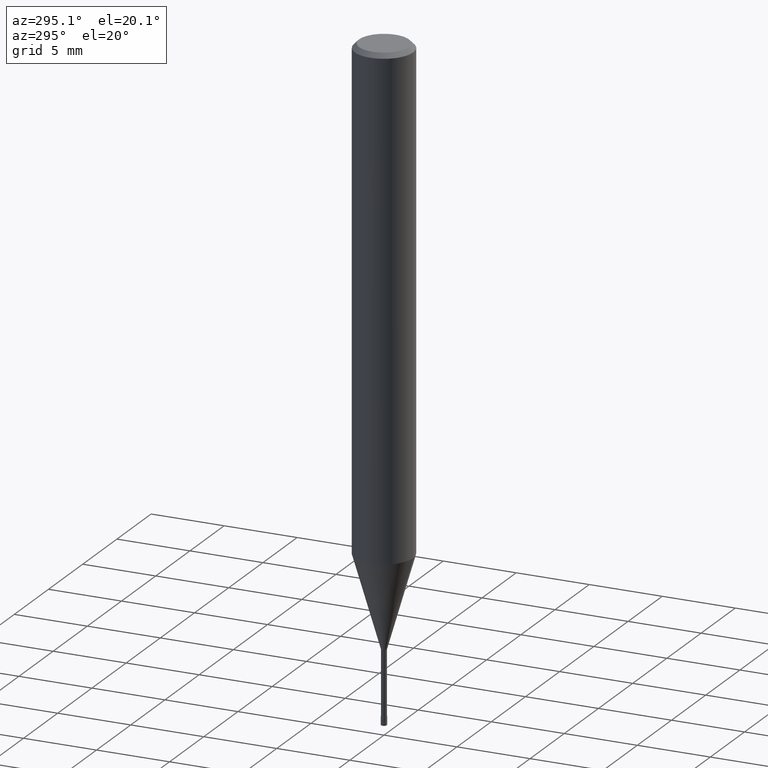
[diagram: clean part render]
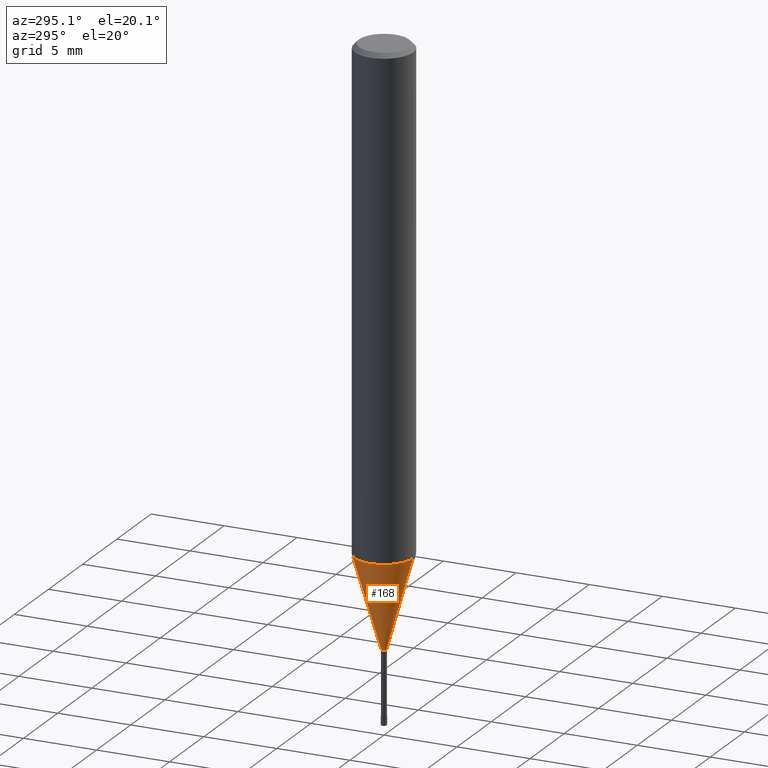
[diagram: same view with one face highlighted and labeled with its STEP entity id]
A machine part, auxiliary view. The second image highlights one B-rep face of the part: STEP entity #168.
In plain terms, the highlighted conical surface has half-angle 16.001 deg.
Its self-contained STEP definition (entity closure, byte-faithful):
#110=EDGE_CURVE('',#124,#160,#248,.T.);
#120=EDGE_CURVE('',#124,#150,#260,.T.);
#124=VERTEX_POINT('',#264);
#136=EDGE_CURVE('',#190,#150,#277,.T.);
#150=VERTEX_POINT('',#292);
#160=VERTEX_POINT('',#302);
#168=ADVANCED_FACE('',(#311),#312,.T.);
#190=VERTEX_POINT('',#341);
#202=EDGE_CURVE('',#160,#190,#353,.T.);
#248=LINE('',#402,#403);
#260=CIRCLE('',#418,0.18995);
#264=CARTESIAN_POINT('',(2.3261397690856E-017,-0.18995,-40.0));
#277=LINE('',#439,#440);
#292=CARTESIAN_POINT('',(0.0,0.18995,-40.0));
#302=CARTESIAN_POINT('',(2.44915147732706E-016,-1.99995,-33.688));
#311=FACE_OUTER_BOUND('',#483,.T.);
#312=CONICAL_SURFACE('',#484,1.09495,0.279261921280279);
#341=CARTESIAN_POINT('',(0.0,1.99995,-33.688));
#353=CIRCLE('',#532,1.99995);
#402=CARTESIAN_POINT('',(1.34088272711781E-016,-1.09495,-36.844));
#403=VECTOR('',#564,1.0);
#418=AXIS2_PLACEMENT_3D('',#580,#581,#582);
#439=CARTESIAN_POINT('',(-1.34088272711781E-016,1.09495,-36.844));
#440=VECTOR('',#594,1.0);
#483=EDGE_LOOP('',(#633,#634,#635,#636));
#484=AXIS2_PLACEMENT_3D('',#637,#638,#639);
#532=AXIS2_PLACEMENT_3D('',#699,#700,#701);
#564=DIRECTION('',(3.37558135426109E-017,-0.275646238787252,0.961259148743169));
#580=CARTESIAN_POINT('',(0.0,0.0,-40.0));
#581=DIRECTION('',(0.0,0.0,-1.0));
#582=DIRECTION('',(0.0,1.0,0.0));
#594=DIRECTION('',(3.37558135426109E-017,-0.275646238787252,-0.961259148743169));
#633=ORIENTED_EDGE('',*,*,#136,.T.);
#634=ORIENTED_EDGE('',*,*,#120,.F.);
#635=ORIENTED_EDGE('',*,*,#110,.T.);
#636=ORIENTED_EDGE('',*,*,#202,.T.);
#637=CARTESIAN_POINT('',(0.0,0.0,-36.844));
#638=DIRECTION('',(-0.0,-0.0,1.0));
#639=DIRECTION('',(0.0,1.0,0.0));
#699=CARTESIAN_POINT('',(0.0,0.0,-33.688));
#700=DIRECTION('',(0.0,0.0,-1.0));
#701=DIRECTION('',(0.0,1.0,0.0));